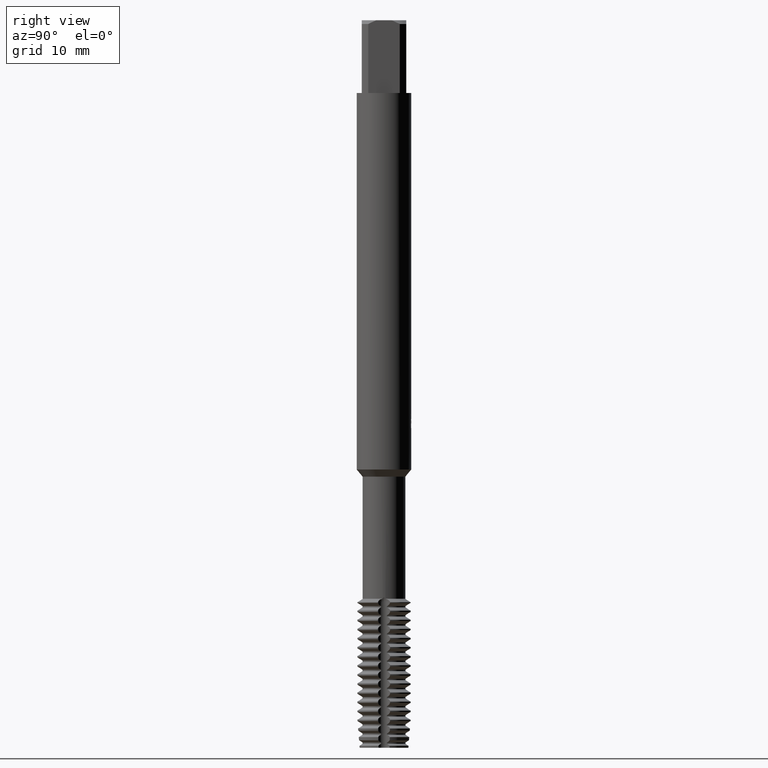
[diagram: clean part render]
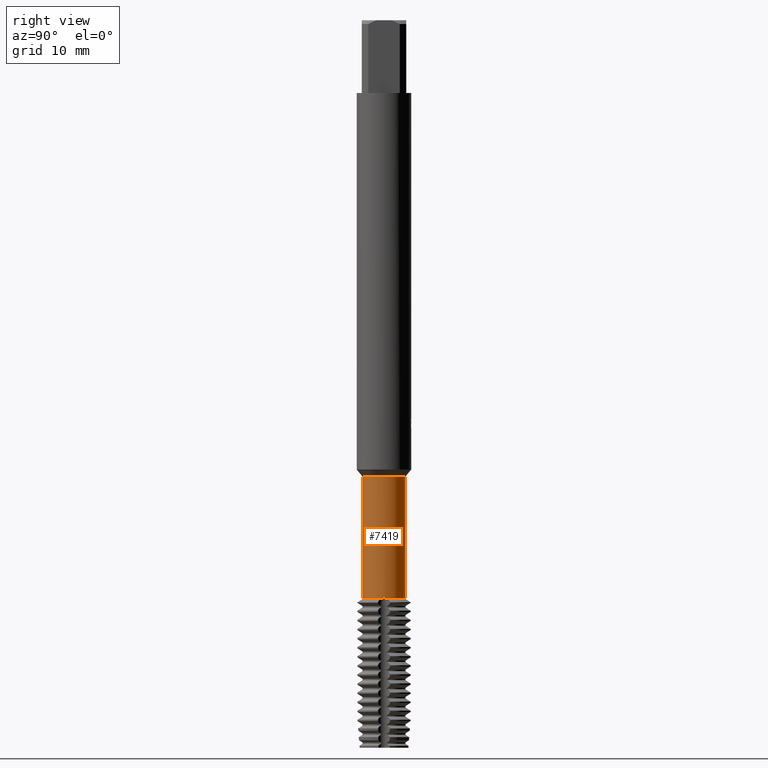
[diagram: same view with one face highlighted and labeled with its STEP entity id]
A machine part, right view. The second image highlights one B-rep face of the part: STEP entity #7419.
In plain terms, the highlighted cylindrical surface (edge-blend (fillet) strip) has radius 2.35 mm, axis along (-0, -0, 1).
Its self-contained STEP definition (entity closure, byte-faithful):
#2975=VERTEX_POINT('',#8399);
#3341=VERTEX_POINT('',#8798);
#3393=VERTEX_POINT('',#8856);
#3835=VERTEX_POINT('',#9327);
#4307=EDGE_CURVE('',#5247,#8009,#9842,.T.);
#4929=EDGE_CURVE('',#3835,#7659,#10530,.T.);
#5151=EDGE_CURVE('',#2975,#5743,#10776,.T.);
#5247=VERTEX_POINT('',#10880);
#5285=EDGE_CURVE('',#5731,#5743,#10919,.T.);
#5329=EDGE_CURVE('',#5731,#8009,#10968,.T.);
#5555=EDGE_CURVE('',#2975,#3393,#11204,.T.);
#5731=VERTEX_POINT('',#11391);
#5737=EDGE_CURVE('',#3341,#3393,#11397,.T.);
#5743=VERTEX_POINT('',#11403);
#7419=ADVANCED_FACE('',(#13224),#13225,.T.);
#7503=EDGE_CURVE('',#3341,#7659,#13318,.T.);
#7659=VERTEX_POINT('',#13489);
#7771=EDGE_CURVE('',#5247,#3835,#13605,.T.);
#8009=VERTEX_POINT('',#13858);
#8399=CARTESIAN_POINT('',(0.0,2.35,-50.18713929));
#8798=CARTESIAN_POINT('',(0.182689470636001,2.34288808040818,-63.6247223250267));
#8856=CARTESIAN_POINT('',(-2.65423356085514E-013,2.35,-63.4834790492952));
#9327=CARTESIAN_POINT('',(2.35,2.65221382145086E-013,-63.4834790492951));
#9842=CIRCLE('',#17182,2.35);
#10530=B_SPLINE_CURVE_WITH_KNOTS('',3,(#18430,#18431,#18432,#18433,#18434,#18435,#18436,#18437,#18438,#18439,#18440,#18441,#18442,#18443,#18444,#18445),.UNSPECIFIED.,.F.,.F.,(4,2,2,2,2,2,2,4),(0.0,0.141733012666338,0.22553435759947,0.280037265856454,0.330005533996571,0.395569932650696,0.510143737639947,0.574448472442599),.UNSPECIFIED.);
#10776=CIRCLE('',#18922,2.35);
#10880=CARTESIAN_POINT('',(2.34288808040818,-0.18268947063601,-63.6247223250267));
#10919=LINE('',#19247,#19248);
#10968=B_SPLINE_CURVE_WITH_KNOTS('',3,(#19374,#19375,#19376,#19377,#19378,#19379,#19380,#19381,#19382,#19383,#19384,#19385,#19386,#19387,#19388,#19389),.UNSPECIFIED.,.F.,.F.,(4,2,2,2,2,2,2,4),(0.0,0.141733012665177,0.225534357596958,0.280037265853106,0.330005533992477,0.395569932645654,0.510143737631378,0.574448472430976),.UNSPECIFIED.);
#11204=LINE('',#19868,#19869);
#11391=CARTESIAN_POINT('',(2.65436800213097E-013,-2.35,-63.4834790492951));
#11397=B_SPLINE_CURVE_WITH_KNOTS('',3,(#20260,#20261,#20262,#20263,#20264,#20265,#20266,#20267,#20268,#20269,#20270,#20271,#20272,#20273,#20274,#20275),.UNSPECIFIED.,.F.,.F.,(4,2,2,2,2,2,2,4),(0.0,0.1417330126666,0.225534357600095,0.280037265857441,0.330005533997821,0.395569932652005,0.510143737641002,0.574448472443187),.UNSPECIFIED.);
#11403=CARTESIAN_POINT('',(2.87782493148259E-016,-2.35,-50.18713929));
#13224=FACE_OUTER_BOUND('',#23688,.T.);
#13225=CYLINDRICAL_SURFACE('',#23689,2.35);
#13318=CIRCLE('',#23863,2.35);
#13489=CARTESIAN_POINT('',(2.34288808040818,0.182689470635983,-63.6247223250267));
#13605=B_SPLINE_CURVE_WITH_KNOTS('',3,(#24413,#24414,#24415,#24416,#24417,#24418,#24419,#24420,#24421,#24422,#24423,#24424,#24425,#24426,#24427,#24428),.UNSPECIFIED.,.F.,.F.,(4,2,2,2,2,2,2,4),(0.0,0.141733012666338,0.22553435759947,0.280037265856454,0.330005533996571,0.395569932650696,0.510143737639947,0.574448472442599),.UNSPECIFIED.);
#13858=CARTESIAN_POINT('',(0.18268947063629,-2.34288808040821,-63.6247223250268));
#17182=AXIS2_PLACEMENT_3D('',#26891,#26892,#26893);
#18430=CARTESIAN_POINT('',(2.34288808040818,-0.18268947063601,-63.6247223250267));
#18431=CARTESIAN_POINT('',(2.34463230530033,-0.160320782965384,-63.5831455656235));
#18432=CARTESIAN_POINT('',(2.34632199995484,-0.13442390263673,-63.5499228172891));
#18433=CARTESIAN_POINT('',(2.34835229091275,-0.0895546832390214,-63.512103928671));
#18434=CARTESIAN_POINT('',(2.34901802323343,-0.0709295724036528,-63.5003891853548));
#18435=CARTESIAN_POINT('',(2.34974228233551,-0.0372486250071346,-63.4878490087652));
#18436=CARTESIAN_POINT('',(2.34992510903411,-0.0234864615260816,-63.4847512665855));
#18437=CARTESIAN_POINT('',(2.35003294950809,0.0035960154943637,-63.4829191655341));
#18438=CARTESIAN_POINT('',(2.34997656253488,0.0164768820492548,-63.4838695328573));
#18439=CARTESIAN_POINT('',(2.34961193285317,0.0458423836832517,-63.4901003236829));
#18440=CARTESIAN_POINT('',(2.3492380974233,0.0616304108968221,-63.4965163904537));
#18441=CARTESIAN_POINT('',(2.34791967138232,0.102170302447274,-63.5199535110794));
#18442=CARTESIAN_POINT('',(2.34669047949355,0.126679049703398,-63.5423830100934));
#18443=CARTESIAN_POINT('',(2.34446744754989,0.16165111305232,-63.5885200155815));
#18444=CARTESIAN_POINT('',(2.34365751433653,0.17282192012473,-63.6063814737641));
#18445=CARTESIAN_POINT('',(2.34288808040818,0.18268947063601,-63.6247223250267));
#18922=AXIS2_PLACEMENT_3D('',#28053,#28054,#28055);
#19247=CARTESIAN_POINT('',(2.87782493148259E-016,-2.35,-56.9059308075134));
#19248=VECTOR('',#28171,1.0);
#19374=CARTESIAN_POINT('',(-0.18268947063602,-2.34288808040818,-63.6247223250267));
#19375=CARTESIAN_POINT('',(-0.160320782965578,-2.34463230530032,-63.5831455656239));
#19376=CARTESIAN_POINT('',(-0.134423902636976,-2.34632199995482,-63.5499228172893));
#19377=CARTESIAN_POINT('',(-0.0895546832390177,-2.34835229091274,-63.512103928671));
#19378=CARTESIAN_POINT('',(-0.0709295724036531,-2.34901802323343,-63.5003891853548));
#19379=CARTESIAN_POINT('',(-0.0372486250071309,-2.34974228233551,-63.4878490087652));
#19380=CARTESIAN_POINT('',(-0.0234864615260813,-2.34992510903411,-63.4847512665855));
#19381=CARTESIAN_POINT('',(0.0035960154943632,-2.35003294950809,-63.4829191655341));
#19382=CARTESIAN_POINT('',(0.0164768820492567,-2.34997656253488,-63.4838695328573));
#19383=CARTESIAN_POINT('',(0.0458423836832526,-2.34961193285317,-63.4901003236829));
#19384=CARTESIAN_POINT('',(0.061630410896826,-2.3492380974233,-63.4965163904537));
#19385=CARTESIAN_POINT('',(0.102170302446841,-2.34791967138233,-63.5199535110792));
#19386=CARTESIAN_POINT('',(0.126679049703004,-2.34669047949358,-63.5423830100929));
#19387=CARTESIAN_POINT('',(0.161651113052331,-2.34446744754989,-63.5885200155815));
#19388=CARTESIAN_POINT('',(0.17282192012475,-2.34365751433652,-63.6063814737642));
#19389=CARTESIAN_POINT('',(0.182689470636021,-2.34288808040818,-63.6247223250267));
#19868=CARTESIAN_POINT('',(-2.87782493148259E-016,2.35,-56.9059308075134));
#19869=VECTOR('',#28388,1.0);
#20260=CARTESIAN_POINT('',(0.182689470635999,2.34288808040818,-63.6247223250267));
#20261=CARTESIAN_POINT('',(0.160320782965331,2.34463230530034,-63.5831455656235));
#20262=CARTESIAN_POINT('',(0.134423902636664,2.34632199995484,-63.5499228172891));
#20263=CARTESIAN_POINT('',(0.0895546832390011,2.34835229091275,-63.512103928671));
#20264=CARTESIAN_POINT('',(0.070929572403638,2.34901802323343,-63.5003891853548));
#20265=CARTESIAN_POINT('',(0.0372486250070978,2.34974228233551,-63.4878490087652));
#20266=CARTESIAN_POINT('',(0.0234864615260601,2.34992510903411,-63.4847512665855));
#20267=CARTESIAN_POINT('',(-0.00359601549433912,2.35003294950809,-63.4829191655341));
#20268=CARTESIAN_POINT('',(-0.0164768820491982,2.34997656253488,-63.4838695328573));
#20269=CARTESIAN_POINT('',(-0.0458423836832671,2.34961193285317,-63.4901003236829));
#20270=CARTESIAN_POINT('',(-0.0616304108968471,2.3492380974233,-63.4965163904537));
#20271=CARTESIAN_POINT('',(-0.102170302447171,2.34791967138232,-63.5199535110794));
#20272=CARTESIAN_POINT('',(-0.126679049703305,2.34669047949356,-63.5423830100933));
#20273=CARTESIAN_POINT('',(-0.161651113052322,2.34446744754989,-63.5885200155815));
#20274=CARTESIAN_POINT('',(-0.172821920124726,2.34365751433653,-63.6063814737642));
#20275=CARTESIAN_POINT('',(-0.182689470635999,2.34288808040818,-63.6247223250267));
#23688=EDGE_LOOP('',(#30608,#30609,#30610,#30611,#30612,#30613,#30614,#30615,#30616));
#23689=AXIS2_PLACEMENT_3D('',#30617,#30618,#30619);
#23863=AXIS2_PLACEMENT_3D('',#30720,#30721,#30722);
#24413=CARTESIAN_POINT('',(2.34288808040818,-0.18268947063601,-63.6247223250267));
#24414=CARTESIAN_POINT('',(2.34463230530033,-0.160320782965384,-63.5831455656235));
#24415=CARTESIAN_POINT('',(2.34632199995484,-0.13442390263673,-63.5499228172891));
#24416=CARTESIAN_POINT('',(2.34835229091275,-0.0895546832390214,-63.512103928671));
#24417=CARTESIAN_POINT('',(2.34901802323343,-0.0709295724036528,-63.5003891853548));
#24418=CARTESIAN_POINT('',(2.34974228233551,-0.0372486250071346,-63.4878490087652));
#24419=CARTESIAN_POINT('',(2.34992510903411,-0.0234864615260816,-63.4847512665855));
#24420=CARTESIAN_POINT('',(2.35003294950809,0.0035960154943637,-63.4829191655341));
#24421=CARTESIAN_POINT('',(2.34997656253488,0.0164768820492548,-63.4838695328573));
#24422=CARTESIAN_POINT('',(2.34961193285317,0.0458423836832517,-63.4901003236829));
#24423=CARTESIAN_POINT('',(2.3492380974233,0.0616304108968221,-63.4965163904537));
#24424=CARTESIAN_POINT('',(2.34791967138232,0.102170302447274,-63.5199535110794));
#24425=CARTESIAN_POINT('',(2.34669047949355,0.126679049703398,-63.5423830100934));
#24426=CARTESIAN_POINT('',(2.34446744754989,0.16165111305232,-63.5885200155815));
#24427=CARTESIAN_POINT('',(2.34365751433653,0.17282192012473,-63.6063814737641));
#24428=CARTESIAN_POINT('',(2.34288808040818,0.18268947063601,-63.6247223250267));
#26891=CARTESIAN_POINT('',(0.0,0.0,-63.6247223250267));
#26892=DIRECTION('',(0.0,0.0,-1.0));
#26893=DIRECTION('',(0.0,1.0,0.0));
#28053=CARTESIAN_POINT('',(0.0,0.0,-50.18713929));
#28054=DIRECTION('',(0.0,0.0,-1.0));
#28055=DIRECTION('',(0.0,1.0,0.0));
#28171=DIRECTION('',(-0.0,-0.0,1.0));
#28388=DIRECTION('',(0.0,0.0,-1.0));
#30608=ORIENTED_EDGE('',*,*,#5555,.F.);
#30609=ORIENTED_EDGE('',*,*,#5151,.T.);
#30610=ORIENTED_EDGE('',*,*,#5285,.F.);
#30611=ORIENTED_EDGE('',*,*,#5329,.T.);
#30612=ORIENTED_EDGE('',*,*,#4307,.F.);
#30613=ORIENTED_EDGE('',*,*,#7771,.T.);
#30614=ORIENTED_EDGE('',*,*,#4929,.T.);
#30615=ORIENTED_EDGE('',*,*,#7503,.F.);
#30616=ORIENTED_EDGE('',*,*,#5737,.T.);
#30617=CARTESIAN_POINT('',(0.0,0.0,-56.9059308075134));
#30618=DIRECTION('',(-0.0,-0.0,1.0));
#30619=DIRECTION('',(0.0,1.0,0.0));
#30720=CARTESIAN_POINT('',(0.0,0.0,-63.6247223250267));
#30721=DIRECTION('',(0.0,0.0,-1.0));
#30722=DIRECTION('',(0.0,1.0,0.0));